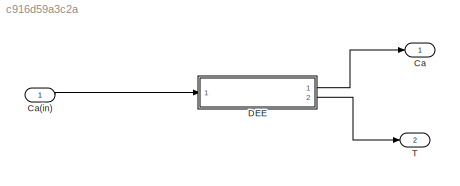
MODEL slx_c916d59a3c2a
KIND model
CONFIG AbsTol = auto
CONFIG EnableMultiTasking = off
CONFIG FixedStep = auto
CONFIG MaxStep = auto
CONFIG MinStep = auto
CONFIG RelTol = 1e-3
CONFIG SampleTimeConstraint = Unconstrained
CONFIG Solver = VariableStepAuto
CONFIG SolverName = VariableStepAuto
CONFIG StartTime = 0.0
CONFIG StopTime = 10.0
WORKSPACE source: MATLAB code (in-file)
WORKSPACE q = 20
WORKSPACE Cain = 0.8
WORKSPACE cp = 0.8
WORKSPACE rho = 52
WORKSPACE dH = -500
WORKSPACE Ti = 90
BLOCK [Outport] Ca
  IconDisplay = Port number
BLOCK [Inport] Ca(in)
  IconDisplay = Port number
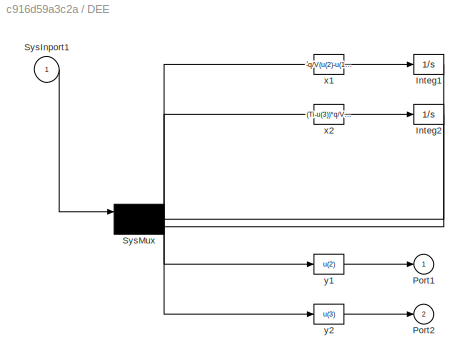
BLOCK [SubSystem] DEE
  OpenFcn = diffeqed
  Ports = [1, 2]
  RequestExecContextInheritance = off
BLOCK [Integrator] DEE/Integ1
  InitialCondition = ca0
  Ports = [1, 1]
BLOCK [Integrator] DEE/Integ2
  InitialCondition = T0
  Ports = [1, 1]
BLOCK [Outport] DEE/Port1
  IconDisplay = Port number
BLOCK [Outport] DEE/Port2
  IconDisplay = Port number
  Port = 2
BLOCK [Inport] DEE/SysInport1
  IconDisplay = Port number
BLOCK [Mux] DEE/SysMux
  Inputs = 3
  Ports = [3, 1]
BLOCK [Fcn] DEE/x1
  Expr = -q/V(u(2)-u(1)) + u(2)*2.4*10^15*exp(-20000/(u(3)+459.67))
BLOCK [Fcn] DEE/x2
  Expr = (Ti-u(3))*q/V + dH/(rho*cp)*u(2)*2.4*10^15*exp(-20000/(u(3)+459.67))
BLOCK [Fcn] DEE/y1
  Expr = u(2)
BLOCK [Fcn] DEE/y2
  Expr = u(3)
BLOCK [Outport] T
  IconDisplay = Port number
  Port = 2
LINE Ca(in):1 -> DEE:1
LINE DEE/Integ1:1 -> DEE/SysMux:2
LINE DEE/Integ2:1 -> DEE/SysMux:3
LINE DEE/SysInport1:1 -> DEE/SysMux:1
NET DEE/SysMux:1 -> DEE/x1:1, DEE/x2:1, DEE/y1:1, DEE/y2:1
LINE DEE/x1:1 -> DEE/Integ1:1
LINE DEE/x2:1 -> DEE/Integ2:1
LINE DEE/y1:1 -> DEE/Port1:1
LINE DEE/y2:1 -> DEE/Port2:1
LINE DEE:1 -> Ca:1
LINE DEE:2 -> T:1
note: NET lines group one-source signal fan-out (src -> all destinations, sorted); 1:1 wires keep LINE
